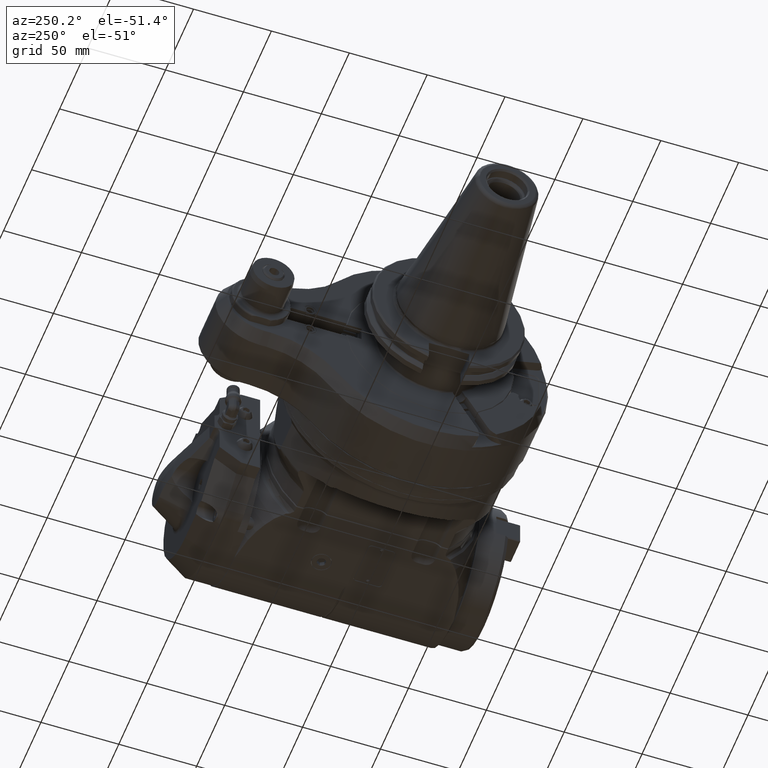
[diagram: clean part render]
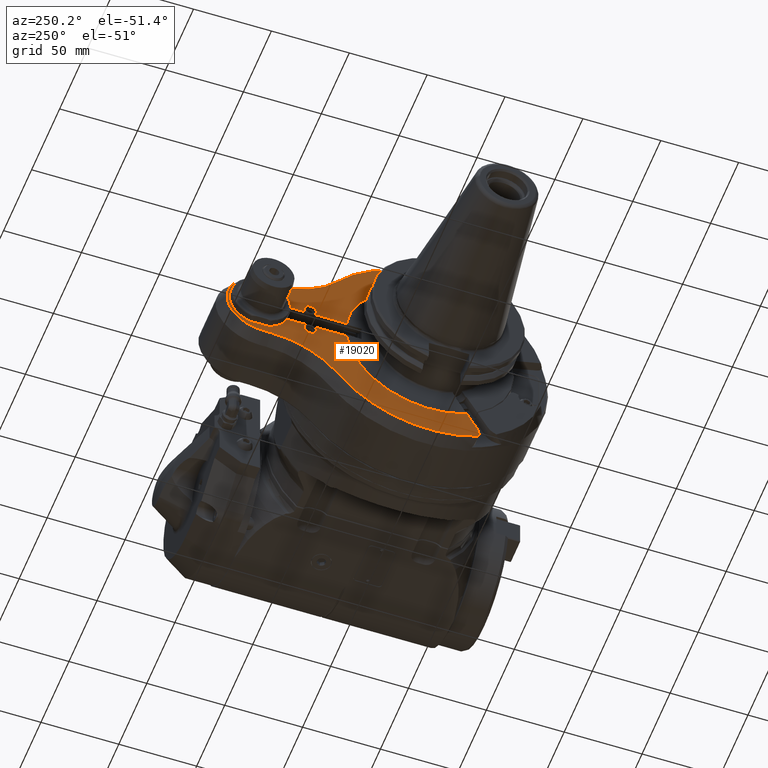
[diagram: same view with one face highlighted and labeled with its STEP entity id]
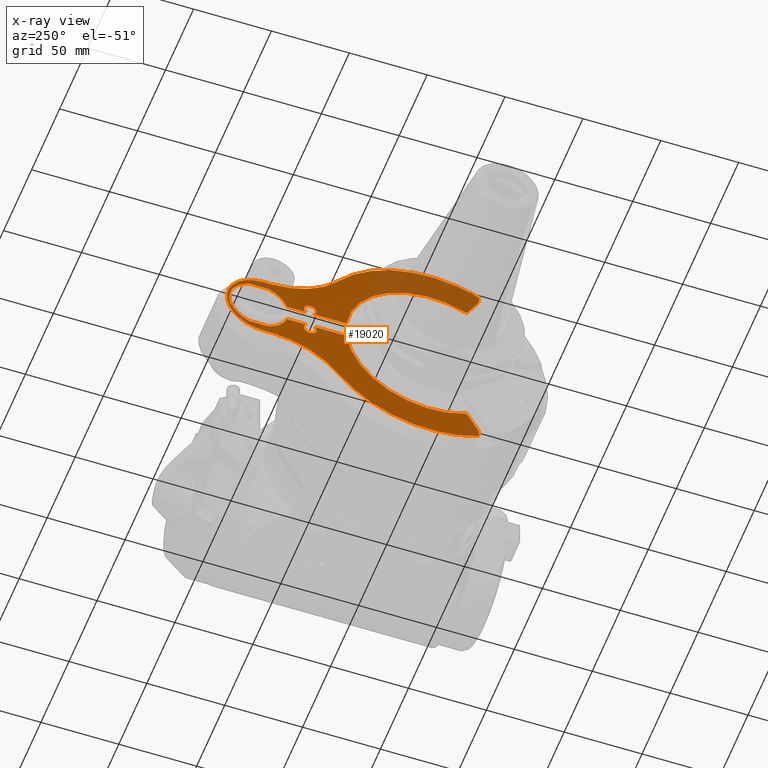
[diagram: x-ray of the same camera — body ghosted, the highlighted face saturated]
A machine part, auxiliary view. The second image highlights one B-rep face of the part: STEP entity #19020.
The next image is the same camera in x-ray: the body ghosted, the highlighted face saturated — about 21% of this face is hidden behind the body in this view.
In plain terms, the highlighted planar face has unit normal (-1, 0, -0).
Its self-contained STEP definition (entity closure, byte-faithful):
#1320=PLANE('',#20726);
#2183=FACE_OUTER_BOUND('',#3352,.T.);
#3352=EDGE_LOOP('',(#16190,#16191,#16192,#16193,#16194,#16195,#16196,#16197,
#16198,#16199,#16200,#16201,#16202,#16203,#16204,#16205,#16206,#16207,#16208,
#16209,#16210,#16211,#16212,#16213,#16214,#16215,#16216));
#4744=LINE('',#32491,#6204);
#4762=LINE('',#32596,#6222);
#4775=LINE('',#32643,#6235);
#4776=LINE('',#32647,#6236);
#4777=LINE('',#32651,#6237);
#4778=LINE('',#32654,#6238);
#4779=LINE('',#32660,#6239);
#4780=LINE('',#32668,#6240);
#4781=LINE('',#32672,#6241);
#4782=LINE('',#32679,#6242);
#6204=VECTOR('',#24887,12.2818268992396);
#6222=VECTOR('',#24969,20.68861722894);
#6235=VECTOR('',#25012,12.1655250606);
#6236=VECTOR('',#25015,12.1655250606);
#6237=VECTOR('',#25018,12.32649231162);
#6238=VECTOR('',#25021,20.68861722894);
#6239=VECTOR('',#25026,12.2818268992396);
#6240=VECTOR('',#25033,4.881197724826);
#6241=VECTOR('',#25036,4.881197592358);
#6242=VECTOR('',#25045,12.32649231162);
#7188=CIRCLE('',#20677,4.);
#7191=CIRCLE('',#20682,10.);
#7228=CIRCLE('',#20723,4.);
#7231=CIRCLE('',#20727,19.);
#7232=CIRCLE('',#20728,19.);
#7233=CIRCLE('',#20729,19.);
#7234=CIRCLE('',#20730,4.);
#7235=CIRCLE('',#20731,54.);
#7236=CIRCLE('',#20732,1.00000000000001);
#7237=CIRCLE('',#20733,10.);
#7238=CIRCLE('',#20734,74.);
#7239=CIRCLE('',#20735,54.5);
#7240=CIRCLE('',#20736,23.5);
#7241=CIRCLE('',#20737,54.5);
#7242=CIRCLE('',#20738,74.);
#7243=CIRCLE('',#20739,1.);
#7244=CIRCLE('',#20740,54.);
#8867=VERTEX_POINT('',#32472);
#8868=VERTEX_POINT('',#32474);
#8873=VERTEX_POINT('',#32485);
#8875=VERTEX_POINT('',#32489);
#8876=VERTEX_POINT('',#32493);
#8921=VERTEX_POINT('',#32593);
#8922=VERTEX_POINT('',#32595);
#8936=VERTEX_POINT('',#32630);
#8939=VERTEX_POINT('',#32639);
#8940=VERTEX_POINT('',#32640);
#8941=VERTEX_POINT('',#32642);
#8942=VERTEX_POINT('',#32644);
#8943=VERTEX_POINT('',#32646);
#8944=VERTEX_POINT('',#32648);
#8945=VERTEX_POINT('',#32650);
#8946=VERTEX_POINT('',#32653);
#8947=VERTEX_POINT('',#32655);
#8948=VERTEX_POINT('',#32657);
#8949=VERTEX_POINT('',#32659);
#8950=VERTEX_POINT('',#32661);
#8951=VERTEX_POINT('',#32663);
#8952=VERTEX_POINT('',#32665);
#8953=VERTEX_POINT('',#32667);
#8954=VERTEX_POINT('',#32669);
#8955=VERTEX_POINT('',#32671);
#8956=VERTEX_POINT('',#32673);
#8957=VERTEX_POINT('',#32676);
#11372=EDGE_CURVE('',#8868,#8867,#7188,.T.);
#11380=EDGE_CURVE('',#8873,#8875,#4744,.T.);
#11381=EDGE_CURVE('',#8876,#8873,#7191,.T.);
#11428=EDGE_CURVE('',#8921,#8922,#4762,.T.);
#11448=EDGE_CURVE('',#8921,#8936,#7228,.T.);
#11452=EDGE_CURVE('',#8939,#8940,#7231,.T.);
#11453=EDGE_CURVE('',#8941,#8940,#4775,.T.);
#11454=EDGE_CURVE('',#8941,#8942,#7232,.T.);
#11455=EDGE_CURVE('',#8943,#8942,#4776,.T.);
#11456=EDGE_CURVE('',#8943,#8944,#7233,.T.);
#11457=EDGE_CURVE('',#8945,#8944,#4777,.T.);
#11458=EDGE_CURVE('',#8945,#8868,#7234,.T.);
#11459=EDGE_CURVE('',#8946,#8867,#4778,.T.);
#11460=EDGE_CURVE('',#8946,#8947,#7235,.T.);
#11461=EDGE_CURVE('',#8947,#8948,#7236,.T.);
#11462=EDGE_CURVE('',#8948,#8949,#4779,.T.);
#11463=EDGE_CURVE('',#8949,#8950,#7237,.T.);
#11464=EDGE_CURVE('',#8950,#8951,#7238,.T.);
#11465=EDGE_CURVE('',#8951,#8952,#7239,.T.);
#11466=EDGE_CURVE('',#8953,#8952,#4780,.T.);
#11467=EDGE_CURVE('',#8953,#8954,#7240,.T.);
#11468=EDGE_CURVE('',#8955,#8954,#4781,.T.);
#11469=EDGE_CURVE('',#8955,#8956,#7241,.T.);
#11470=EDGE_CURVE('',#8956,#8876,#7242,.T.);
#11471=EDGE_CURVE('',#8875,#8957,#7243,.T.);
#11472=EDGE_CURVE('',#8957,#8922,#7244,.T.);
#11473=EDGE_CURVE('',#8939,#8936,#4782,.T.);
#16190=ORIENTED_EDGE('',*,*,#11452,.T.);
#16191=ORIENTED_EDGE('',*,*,#11453,.F.);
#16192=ORIENTED_EDGE('',*,*,#11454,.T.);
#16193=ORIENTED_EDGE('',*,*,#11455,.F.);
#16194=ORIENTED_EDGE('',*,*,#11456,.T.);
#16195=ORIENTED_EDGE('',*,*,#11457,.F.);
#16196=ORIENTED_EDGE('',*,*,#11458,.T.);
#16197=ORIENTED_EDGE('',*,*,#11372,.T.);
#16198=ORIENTED_EDGE('',*,*,#11459,.F.);
#16199=ORIENTED_EDGE('',*,*,#11460,.T.);
#16200=ORIENTED_EDGE('',*,*,#11461,.T.);
#16201=ORIENTED_EDGE('',*,*,#11462,.T.);
#16202=ORIENTED_EDGE('',*,*,#11463,.T.);
#16203=ORIENTED_EDGE('',*,*,#11464,.T.);
#16204=ORIENTED_EDGE('',*,*,#11465,.T.);
#16205=ORIENTED_EDGE('',*,*,#11466,.F.);
#16206=ORIENTED_EDGE('',*,*,#11467,.T.);
#16207=ORIENTED_EDGE('',*,*,#11468,.F.);
#16208=ORIENTED_EDGE('',*,*,#11469,.T.);
#16209=ORIENTED_EDGE('',*,*,#11470,.T.);
#16210=ORIENTED_EDGE('',*,*,#11381,.T.);
#16211=ORIENTED_EDGE('',*,*,#11380,.T.);
#16212=ORIENTED_EDGE('',*,*,#11471,.T.);
#16213=ORIENTED_EDGE('',*,*,#11472,.T.);
#16214=ORIENTED_EDGE('',*,*,#11428,.F.);
#16215=ORIENTED_EDGE('',*,*,#11448,.T.);
#16216=ORIENTED_EDGE('',*,*,#11473,.F.);
#19020=ADVANCED_FACE('',(#2183),#1320,.T.);
#20677=AXIS2_PLACEMENT_3D('',#32475,#24874,#24875);
#20682=AXIS2_PLACEMENT_3D('',#32494,#24890,#24891);
#20723=AXIS2_PLACEMENT_3D('',#32632,#25001,#25002);
#20726=AXIS2_PLACEMENT_3D('',#32638,#25008,#25009);
#20727=AXIS2_PLACEMENT_3D('',#32641,#25010,#25011);
#20728=AXIS2_PLACEMENT_3D('',#32645,#25013,#25014);
#20729=AXIS2_PLACEMENT_3D('',#32649,#25016,#25017);
#20730=AXIS2_PLACEMENT_3D('',#32652,#25019,#25020);
#20731=AXIS2_PLACEMENT_3D('',#32656,#25022,#25023);
#20732=AXIS2_PLACEMENT_3D('',#32658,#25024,#25025);
#20733=AXIS2_PLACEMENT_3D('',#32662,#25027,#25028);
#20734=AXIS2_PLACEMENT_3D('',#32664,#25029,#25030);
#20735=AXIS2_PLACEMENT_3D('',#32666,#25031,#25032);
#20736=AXIS2_PLACEMENT_3D('',#32670,#25034,#25035);
#20737=AXIS2_PLACEMENT_3D('',#32674,#25037,#25038);
#20738=AXIS2_PLACEMENT_3D('',#32675,#25039,#25040);
#20739=AXIS2_PLACEMENT_3D('',#32677,#25041,#25042);
#20740=AXIS2_PLACEMENT_3D('',#32678,#25043,#25044);
#24874=DIRECTION('center_axis',(1.,0.,0.));
#24875=DIRECTION('ref_axis',(0.,0.,1.));
#24887=DIRECTION('',(0.,0.500000000000017,0.866025403784429));
#24890=DIRECTION('center_axis',(-1.,0.,0.));
#24891=DIRECTION('ref_axis',(0.,-0.979106435021457,-0.203348442087891));
#24969=DIRECTION('',(0.,-1.,0.));
#25001=DIRECTION('center_axis',(1.,0.,0.));
#25002=DIRECTION('ref_axis',(0.,-0.661437827766177,0.749999999999974));
#25008=DIRECTION('center_axis',(-1.,0.,0.));
#25009=DIRECTION('ref_axis',(0.,0.,1.));
#25010=DIRECTION('center_axis',(1.,0.,0.));
#25011=DIRECTION('ref_axis',(0.,-0.948829283016839,-0.315789473684213));
#25012=DIRECTION('',(0.,-1.,0.));
#25013=DIRECTION('center_axis',(1.,0.,0.));
#25014=DIRECTION('ref_axis',(0.,0.320145396331508,-0.947368421052624));
#25015=DIRECTION('',(0.,1.,0.));
#25016=DIRECTION('center_axis',(1.,0.,0.));
#25017=DIRECTION('ref_axis',(0.,-0.320145396331508,0.947368421052624));
#25018=DIRECTION('',(0.,1.,0.));
#25019=DIRECTION('center_axis',(1.,0.,0.));
#25020=DIRECTION('ref_axis',(0.,0.,1.));
#25021=DIRECTION('',(0.,1.,0.));
#25022=DIRECTION('center_axis',(1.,0.,0.));
#25023=DIRECTION('ref_axis',(0.,0.993807989999908,0.111111111111101));
#25024=DIRECTION('center_axis',(-1.,0.,0.));
#25025=DIRECTION('ref_axis',(0.,-0.866025403783324,-0.50000000000193));
#25026=DIRECTION('',(0.,-0.500000000000017,0.866025403784429));
#25027=DIRECTION('center_axis',(-1.,0.,0.));
#25028=DIRECTION('ref_axis',(0.,-0.866025403784429,-0.500000000000017));
#25029=DIRECTION('center_axis',(-1.,0.,0.));
#25030=DIRECTION('ref_axis',(0.,-0.421537162460908,0.906811127338216));
#25031=DIRECTION('center_axis',(1.,0.,0.));
#25032=DIRECTION('ref_axis',(0.,-0.794698786170401,-0.607003986197201));
#25033=DIRECTION('',(0.,-1.,0.));
#25034=DIRECTION('center_axis',(-1.,0.,0.));
#25035=DIRECTION('ref_axis',(0.,0.,1.));
#25036=DIRECTION('',(0.,1.,0.));
#25037=DIRECTION('center_axis',(1.,0.,0.));
#25038=DIRECTION('ref_axis',(0.,-1.462785203872E-8,1.));
#25039=DIRECTION('center_axis',(-1.,0.,0.));
#25040=DIRECTION('ref_axis',(0.,0.794698900713593,-0.607003836235495));
#25041=DIRECTION('center_axis',(-1.,0.,0.));
#25042=DIRECTION('ref_axis',(0.,-0.866025403784274,0.500000000000285));
#25043=DIRECTION('center_axis',(1.,0.,0.));
#25044=DIRECTION('ref_axis',(0.,-0.419200015569689,-0.907893907318676));
#25045=DIRECTION('',(0.,-1.,0.));
#32472=CARTESIAN_POINT('',(37.,74.35424868894,6.));
#32474=CARTESIAN_POINT('',(37.,77.,13.));
#32475=CARTESIAN_POINT('Origin',(37.,77.,9.));
#32485=CARTESIAN_POINT('',(37.,-30.06293970974,-60.07053900215));
#32489=CARTESIAN_POINT('',(37.,-23.92202626012,-49.43416490253));
#32491=CARTESIAN_POINT('',(37.,-30.06293970974,-60.07053900215));
#32493=CARTESIAN_POINT('',(37.,-31.19375002211,-67.10402342302));
#32494=CARTESIAN_POINT('Origin',(37.,-21.40268567189,-65.07053900215));
#32593=CARTESIAN_POINT('',(37.,74.35424868894,-6.));
#32595=CARTESIAN_POINT('',(37.,53.66563145999,-6.));
#32596=CARTESIAN_POINT('',(37.,74.35424868894,-6.));
#32630=CARTESIAN_POINT('',(37.,79.64575131106,-6.));
#32632=CARTESIAN_POINT('Origin',(37.,77.,-9.));
#32638=CARTESIAN_POINT('Origin',(37.,-75.575,7.105427357601E-14));
#32639=CARTESIAN_POINT('',(37.,91.97224362268,-6.));
#32640=CARTESIAN_POINT('',(37.,103.9172374697,-18.));
#32641=CARTESIAN_POINT('Origin',(37.,110.,0.));
#32642=CARTESIAN_POINT('',(37.,116.0827625303,-18.));
#32643=CARTESIAN_POINT('',(37.,116.0827625303,-18.));
#32644=CARTESIAN_POINT('',(37.,116.0827625303,18.));
#32645=CARTESIAN_POINT('Origin',(37.,110.,0.));
#32646=CARTESIAN_POINT('',(37.,103.9172374697,18.));
#32647=CARTESIAN_POINT('',(37.,103.9172374697,18.));
#32648=CARTESIAN_POINT('',(37.,91.97224362268,6.));
#32649=CARTESIAN_POINT('Origin',(37.,110.,0.));
#32650=CARTESIAN_POINT('',(37.,79.64575131106,6.));
#32651=CARTESIAN_POINT('',(37.,79.64575131106,6.));
#32652=CARTESIAN_POINT('Origin',(37.,77.,9.));
#32653=CARTESIAN_POINT('',(37.,53.66563145999,6.));
#32654=CARTESIAN_POINT('',(37.,53.66563145999,6.));
#32655=CARTESIAN_POINT('',(37.0000000000013,-22.6436407755973,49.0237461955684));
#32656=CARTESIAN_POINT('Origin',(37.,0.,0.));
#32657=CARTESIAN_POINT('',(37.,-23.92202626012,49.43416490253));
#32658=CARTESIAN_POINT('Origin',(37.,-23.05600085634,49.93416490253));
#32659=CARTESIAN_POINT('',(37.,-30.06293970974,60.07053900215));
#32660=CARTESIAN_POINT('',(37.,-23.92202626012,49.43416490253));
#32661=CARTESIAN_POINT('',(37.,-31.19375002211,67.10402342303));
#32662=CARTESIAN_POINT('Origin',(37.,-21.40268567189,65.07053900215));
#32663=CARTESIAN_POINT('',(36.9999999771723,58.8077168878181,44.9182862573303));
#32664=CARTESIAN_POINT('Origin',(37.,0.,0.));
#32665=CARTESIAN_POINT('',(37.,102.1188025529,23.5));
#32666=CARTESIAN_POINT('Origin',(37.,102.1188033616,78.));
#32667=CARTESIAN_POINT('',(37.,107.000000276273,23.5));
#32668=CARTESIAN_POINT('',(37.,107.0000002777,23.5));
#32669=CARTESIAN_POINT('',(37.,107.0000001452,-23.5));
#32670=CARTESIAN_POINT('Origin',(37.,107.,0.));
#32671=CARTESIAN_POINT('',(37.,102.118802554414,-23.5));
#32672=CARTESIAN_POINT('',(37.,102.1188025529,-23.5));
#32673=CARTESIAN_POINT('',(36.999999982415,58.807716591795,-44.9182866299284));
#32674=CARTESIAN_POINT('Origin',(37.,102.1188033616,-78.));
#32675=CARTESIAN_POINT('Origin',(37.,0.,0.));
#32676=CARTESIAN_POINT('',(37.,-22.63680084077,-49.02627099521));
#32677=CARTESIAN_POINT('Origin',(37.,-23.05600085634,-49.93416490253));
#32678=CARTESIAN_POINT('Origin',(37.,0.,0.));
#32679=CARTESIAN_POINT('',(37.,91.97224362268,-6.));